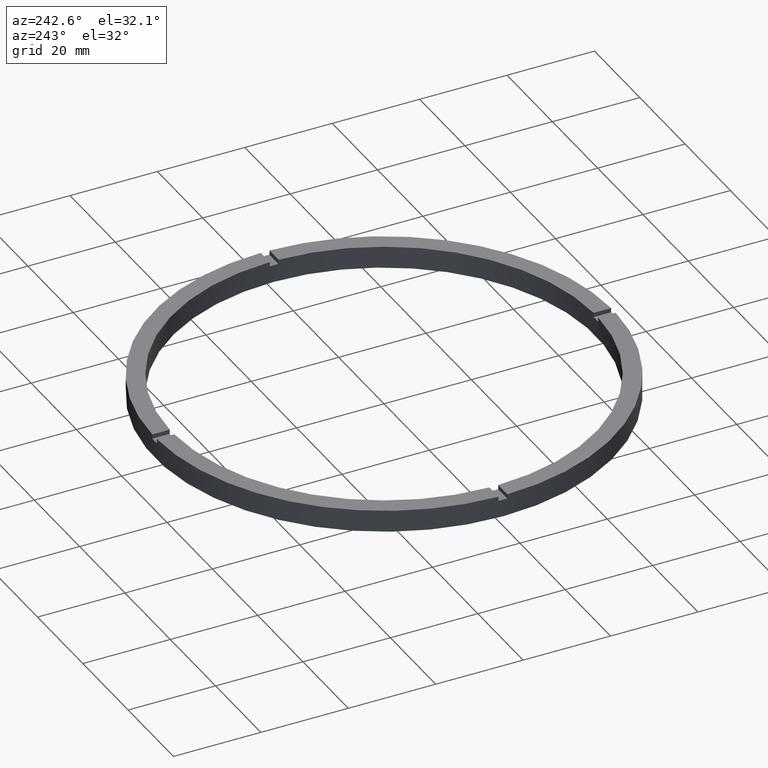
[diagram: clean part render]
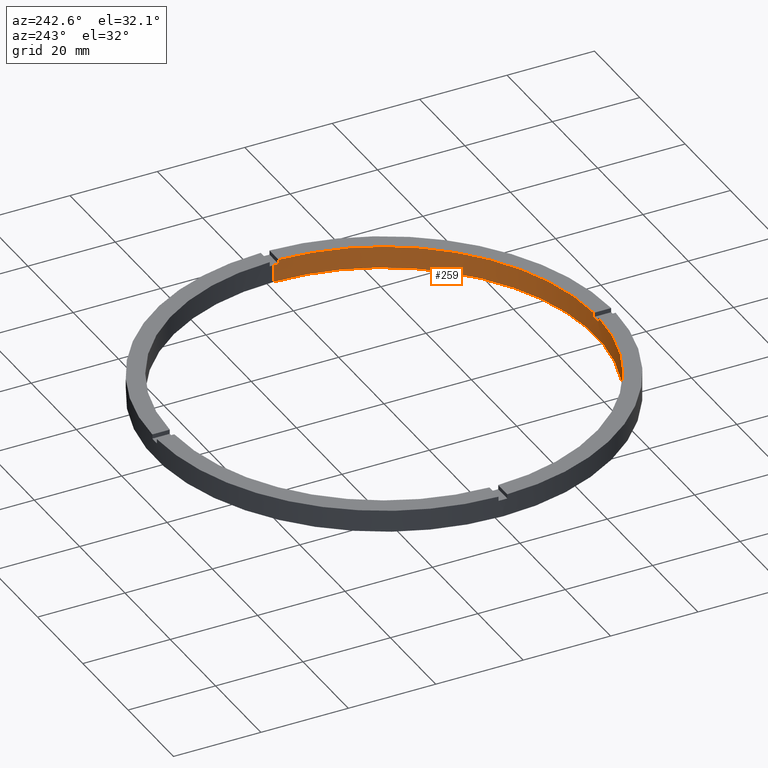
[diagram: same view with one face highlighted and labeled with its STEP entity id]
A machine part, auxiliary view. The second image highlights one B-rep face of the part: STEP entity #259.
In plain terms, the highlighted cylindrical surface (partial cylindrical patch) has radius 48.5 mm, axis along (-0, -0, -1).
Its self-contained STEP definition (entity closure, byte-faithful):
#9 = CARTESIAN_POINT ( 'NONE',  ( 0.000000000000000000, 0.000000000000000000, 4.000000000000000000 ) ) ;
#20 = CARTESIAN_POINT ( 'NONE',  ( -48.50000000000000000, 0.000000000000000000, 5.000000000000000000 ) ) ;
#21 = DIRECTION ( 'NONE',  ( 0.000000000000000000, 0.000000000000000000, 1.000000000000000000 ) ) ;
#25 = CARTESIAN_POINT ( 'NONE',  ( 48.48968962573384545, -1.000000000000154987, 5.000000000000000000 ) ) ;
#29 = DIRECTION ( 'NONE',  ( 1.000000000000000000, 0.000000000000000000, 0.000000000000000000 ) ) ;
#38 = CARTESIAN_POINT ( 'NONE',  ( -1.000000000000156763, -48.48968962573384545, 5.000000000000000000 ) ) ;
#53 = DIRECTION ( 'NONE',  ( -0.000000000000000000, -0.000000000000000000, -1.000000000000000000 ) ) ;
#54 = DIRECTION ( 'NONE',  ( 1.000000000000000000, 0.000000000000000000, 0.000000000000000000 ) ) ;
#63 = CARTESIAN_POINT ( 'NONE',  ( 0.000000000000000000, 0.000000000000000000, 5.000000000000000000 ) ) ;
#66 = EDGE_CURVE ( 'NONE', #151, #616, #228, .T. ) ;
#70 = EDGE_CURVE ( 'NONE', #366, #624, #477, .T. ) ;
#90 = ORIENTED_EDGE ( 'NONE', *, *, #66, .T. ) ;
#93 = VERTEX_POINT ( 'NONE', #264 ) ;
#96 = DIRECTION ( 'NONE',  ( 0.000000000000000000, 0.000000000000000000, 1.000000000000000000 ) ) ;
#104 = ORIENTED_EDGE ( 'NONE', *, *, #220, .F. ) ;
#111 = ORIENTED_EDGE ( 'NONE', *, *, #690, .T. ) ;
#112 = VERTEX_POINT ( 'NONE', #148 ) ;
#117 = VERTEX_POINT ( 'NONE', #540 ) ;
#122 = FACE_OUTER_BOUND ( 'NONE', #468, .T. ) ;
#125 = CARTESIAN_POINT ( 'NONE',  ( 0.000000000000000000, 0.000000000000000000, 5.000000000000000000 ) ) ;
#126 = VERTEX_POINT ( 'NONE', #38 ) ;
#132 = LINE ( 'NONE', #267, #152 ) ;
#136 = VERTEX_POINT ( 'NONE', #570 ) ;
#148 = CARTESIAN_POINT ( 'NONE',  ( 48.50000000000000000, 5.939536975864663363E-15, 0.000000000000000000 ) ) ;
#151 = VERTEX_POINT ( 'NONE', #479 ) ;
#152 = VECTOR ( 'NONE', #585, 1000.000000000000000 ) ;
#164 = ORIENTED_EDGE ( 'NONE', *, *, #517, .T. ) ;
#172 = CARTESIAN_POINT ( 'NONE',  ( -48.50000000000000000, 0.000000000000000000, 0.000000000000000000 ) ) ;
#176 = VECTOR ( 'NONE', #21, 1000.000000000000000 ) ;
#177 = DIRECTION ( 'NONE',  ( 0.000000000000000000, 0.000000000000000000, 1.000000000000000000 ) ) ;
#182 = CIRCLE ( 'NONE', #763, 48.50000000000000000 ) ;
#184 = CARTESIAN_POINT ( 'NONE',  ( 0.9999999999998432365, -48.48968962573384545, 5.000000000000000000 ) ) ;
#190 = EDGE_CURVE ( 'NONE', #195, #117, #221, .T. ) ;
#195 = VERTEX_POINT ( 'NONE', #489 ) ;
#201 = AXIS2_PLACEMENT_3D ( 'NONE', #466, #96, #254 ) ;
#213 = VECTOR ( 'NONE', #771, 1000.000000000000000 ) ;
#220 = EDGE_CURVE ( 'NONE', #621, #112, #224, .T. ) ;
#221 = LINE ( 'NONE', #184, #487 ) ;
#224 = CIRCLE ( 'NONE', #602, 48.50000000000000000 ) ;
#225 = LINE ( 'NONE', #20, #213 ) ;
#228 = CIRCLE ( 'NONE', #201, 48.50000000000000000 ) ;
#234 = DIRECTION ( 'NONE',  ( -0.000000000000000000, -0.000000000000000000, -1.000000000000000000 ) ) ;
#240 = EDGE_CURVE ( 'NONE', #151, #621, #225, .T. ) ;
#241 = DIRECTION ( 'NONE',  ( -0.000000000000000000, -0.000000000000000000, -1.000000000000000000 ) ) ;
#248 = DIRECTION ( 'NONE',  ( 0.000000000000000000, 0.000000000000000000, 1.000000000000000000 ) ) ;
#254 = DIRECTION ( 'NONE',  ( 1.000000000000000000, 0.000000000000000000, 0.000000000000000000 ) ) ;
#258 = AXIS2_PLACEMENT_3D ( 'NONE', #523, #248, #54 ) ;
#259 = ADVANCED_FACE ( 'NONE', ( #122 ), #682, .F. ) ;
#264 = CARTESIAN_POINT ( 'NONE',  ( -1.000000000000156763, -48.48968962573384545, 4.000000000000000000 ) ) ;
#267 = CARTESIAN_POINT ( 'NONE',  ( -1.000000000000156763, -48.48968962573384545, 5.000000000000000000 ) ) ;
#273 = AXIS2_PLACEMENT_3D ( 'NONE', #63, #241, #524 ) ;
#284 = DIRECTION ( 'NONE',  ( -0.000000000000000000, 0.000000000000000000, 1.000000000000000000 ) ) ;
#306 = CARTESIAN_POINT ( 'NONE',  ( 0.000000000000000000, 0.000000000000000000, 4.000000000000000000 ) ) ;
#337 = ORIENTED_EDGE ( 'NONE', *, *, #746, .T. ) ;
#349 = DIRECTION ( 'NONE',  ( 0.000000000000000000, 0.000000000000000000, 1.000000000000000000 ) ) ;
#352 = ORIENTED_EDGE ( 'NONE', *, *, #190, .F. ) ;
#353 = AXIS2_PLACEMENT_3D ( 'NONE', #9, #756, #449 ) ;
#364 = ORIENTED_EDGE ( 'NONE', *, *, #499, .F. ) ;
#366 = VERTEX_POINT ( 'NONE', #501 ) ;
#375 = CARTESIAN_POINT ( 'NONE',  ( -48.48968962573384545, -1.000000000000031530, 4.000000000000000000 ) ) ;
#378 = CIRCLE ( 'NONE', #688, 48.50000000000000000 ) ;
#392 = VECTOR ( 'NONE', #53, 1000.000000000000000 ) ;
#401 = ORIENTED_EDGE ( 'NONE', *, *, #240, .F. ) ;
#414 = LINE ( 'NONE', #513, #672 ) ;
#417 = LINE ( 'NONE', #25, #176 ) ;
#449 = DIRECTION ( 'NONE',  ( 1.000000000000000000, 0.000000000000000000, 0.000000000000000000 ) ) ;
#457 = VERTEX_POINT ( 'NONE', #550 ) ;
#466 = CARTESIAN_POINT ( 'NONE',  ( 0.000000000000000000, 0.000000000000000000, 4.000000000000000000 ) ) ;
#468 = EDGE_LOOP ( 'NONE', ( #678, #600, #104, #401, #90, #631, #164, #364, #111, #352, #337, #647 ) ) ;
#471 = DIRECTION ( 'NONE',  ( 1.000000000000000000, 0.000000000000000000, 0.000000000000000000 ) ) ;
#475 = DIRECTION ( 'NONE',  ( -0.000000000000000000, -0.000000000000000000, -1.000000000000000000 ) ) ;
#477 = CIRCLE ( 'NONE', #353, 48.50000000000000000 ) ;
#479 = CARTESIAN_POINT ( 'NONE',  ( -48.50000000000000000, 0.000000000000000000, 4.000000000000000000 ) ) ;
#482 = DIRECTION ( 'NONE',  ( 1.000000000000000000, 0.000000000000000000, 0.000000000000000000 ) ) ;
#487 = VECTOR ( 'NONE', #234, 1000.000000000000000 ) ;
#489 = CARTESIAN_POINT ( 'NONE',  ( 0.9999999999998432365, -48.48968962573384545, 5.000000000000000000 ) ) ;
#495 = CARTESIAN_POINT ( 'NONE',  ( 48.50000000000000000, 5.939536975864663363E-15, 4.000000000000000000 ) ) ;
#499 = EDGE_CURVE ( 'NONE', #93, #126, #132, .T. ) ;
#501 = CARTESIAN_POINT ( 'NONE',  ( 48.48968962573384545, -1.000000000000154987, 4.000000000000000000 ) ) ;
#506 = EDGE_CURVE ( 'NONE', #136, #616, #667, .T. ) ;
#513 = CARTESIAN_POINT ( 'NONE',  ( 48.50000000000000000, 5.939536975864663363E-15, 5.000000000000000000 ) ) ;
#517 = EDGE_CURVE ( 'NONE', #136, #126, #378, .T. ) ;
#523 = CARTESIAN_POINT ( 'NONE',  ( 0.000000000000000000, 0.000000000000000000, 5.000000000000000000 ) ) ;
#524 = DIRECTION ( 'NONE',  ( -1.000000000000000000, 0.000000000000000000, 0.000000000000000000 ) ) ;
#538 = EDGE_CURVE ( 'NONE', #624, #112, #414, .T. ) ;
#540 = CARTESIAN_POINT ( 'NONE',  ( 0.9999999999998432365, -48.48968962573384545, 4.000000000000000000 ) ) ;
#550 = CARTESIAN_POINT ( 'NONE',  ( 48.48968962573384545, -1.000000000000154987, 5.000000000000000000 ) ) ;
#560 = CARTESIAN_POINT ( 'NONE',  ( 0.000000000000000000, 0.000000000000000000, 0.000000000000000000 ) ) ;
#570 = CARTESIAN_POINT ( 'NONE',  ( -48.48968962573384545, -1.000000000000031530, 5.000000000000000000 ) ) ;
#585 = DIRECTION ( 'NONE',  ( 0.000000000000000000, 0.000000000000000000, 1.000000000000000000 ) ) ;
#600 = ORIENTED_EDGE ( 'NONE', *, *, #538, .T. ) ;
#602 = AXIS2_PLACEMENT_3D ( 'NONE', #560, #177, #482 ) ;
#616 = VERTEX_POINT ( 'NONE', #375 ) ;
#621 = VERTEX_POINT ( 'NONE', #172 ) ;
#624 = VERTEX_POINT ( 'NONE', #495 ) ;
#630 = EDGE_CURVE ( 'NONE', #366, #457, #417, .T. ) ;
#631 = ORIENTED_EDGE ( 'NONE', *, *, #506, .F. ) ;
#647 = ORIENTED_EDGE ( 'NONE', *, *, #630, .F. ) ;
#667 = LINE ( 'NONE', #696, #392 ) ;
#672 = VECTOR ( 'NONE', #475, 1000.000000000000000 ) ;
#678 = ORIENTED_EDGE ( 'NONE', *, *, #70, .T. ) ;
#682 = CYLINDRICAL_SURFACE ( 'NONE', #273, 48.50000000000000000 ) ;
#688 = AXIS2_PLACEMENT_3D ( 'NONE', #125, #349, #471 ) ;
#690 = EDGE_CURVE ( 'NONE', #93, #117, #182, .T. ) ;
#696 = CARTESIAN_POINT ( 'NONE',  ( -48.48968962573384545, -1.000000000000031530, 5.000000000000000000 ) ) ;
#704 = CIRCLE ( 'NONE', #258, 48.50000000000000000 ) ;
#746 = EDGE_CURVE ( 'NONE', #195, #457, #704, .T. ) ;
#756 = DIRECTION ( 'NONE',  ( 0.000000000000000000, 0.000000000000000000, 1.000000000000000000 ) ) ;
#763 = AXIS2_PLACEMENT_3D ( 'NONE', #306, #284, #29 ) ;
#771 = DIRECTION ( 'NONE',  ( -0.000000000000000000, -0.000000000000000000, -1.000000000000000000 ) ) ;